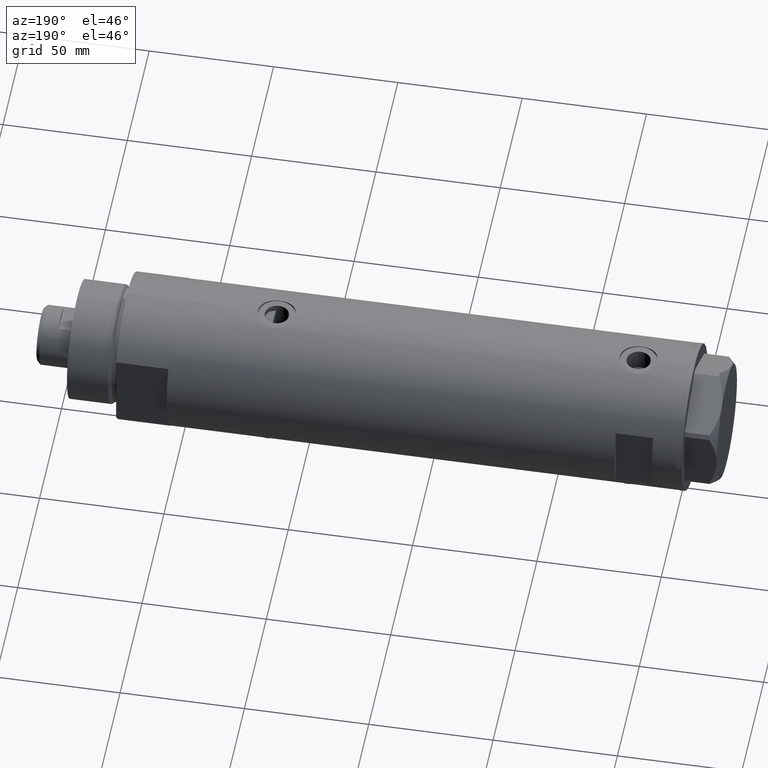
[diagram: clean part render]
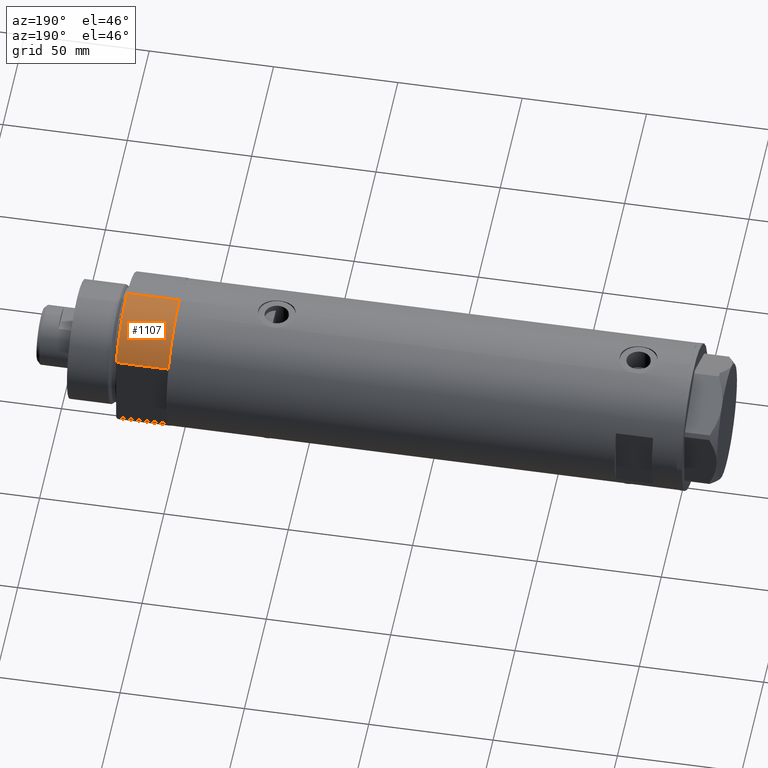
[diagram: same view with one face highlighted and labeled with its STEP entity id]
A machine part, auxiliary view. The second image highlights one B-rep face of the part: STEP entity #1107.
In plain terms, the highlighted cylindrical surface (partial cylindrical patch) has radius 29.5 mm, axis along (-1, -0, 0).
Its self-contained STEP definition (entity closure, byte-faithful):
#319 = CIRCLE ( 'NONE', #3950, 29.50000000000000355 ) ;
#484 = CARTESIAN_POINT ( 'NONE',  ( -15.66045976336583401, 25.00000000000000000, 0.000000000000000000 ) ) ;
#569 = ORIENTED_EDGE ( 'NONE', *, *, #4705, .T. ) ;
#577 = AXIS2_PLACEMENT_3D ( 'NONE', #2679, #3740, #3428 ) ;
#601 = CARTESIAN_POINT ( 'NONE',  ( 0.000000000000000000, 0.000000000000000000, 21.00000000000000000 ) ) ;
#618 = CIRCLE ( 'NONE', #1243, 29.50000000000000355 ) ;
#698 = EDGE_CURVE ( 'NONE', #1088, #1925, #1574, .T. ) ;
#761 = EDGE_CURVE ( 'NONE', #3029, #3619, #1622, .T. ) ;
#765 = CARTESIAN_POINT ( 'NONE',  ( -29.50000000000000355, 0.000000000000000000, 21.00000000000000000 ) ) ;
#847 = DIRECTION ( 'NONE',  ( 0.000000000000000000, 0.000000000000000000, 1.000000000000000000 ) ) ;
#1088 = VERTEX_POINT ( 'NONE', #765 ) ;
#1107 = ADVANCED_FACE ( 'NONE', ( #3765 ), #2315, .T. ) ;
#1243 = AXIS2_PLACEMENT_3D ( 'NONE', #601, #1990, #4279 ) ;
#1505 = VECTOR ( 'NONE', #3168, 1000.000000000000000 ) ;
#1574 = LINE ( 'NONE', #1961, #4126 ) ;
#1604 = CARTESIAN_POINT ( 'NONE',  ( 0.000000000000000000, 0.000000000000000000, 0.000000000000000000 ) ) ;
#1622 = LINE ( 'NONE', #3530, #1505 ) ;
#1663 = CARTESIAN_POINT ( 'NONE',  ( -29.50000000000000355, 0.000000000000000000, 0.000000000000000000 ) ) ;
#1925 = VERTEX_POINT ( 'NONE', #1663 ) ;
#1961 = CARTESIAN_POINT ( 'NONE',  ( -29.50000000000000355, 0.000000000000000000, 21.00000000000000000 ) ) ;
#1964 = CARTESIAN_POINT ( 'NONE',  ( -15.66045976336583045, 24.99999999999999645, 21.00000000000000355 ) ) ;
#1990 = DIRECTION ( 'NONE',  ( 0.000000000000000000, 0.000000000000000000, 1.000000000000000000 ) ) ;
#2315 = CYLINDRICAL_SURFACE ( 'NONE', #577, 29.50000000000000355 ) ;
#2679 = CARTESIAN_POINT ( 'NONE',  ( 0.000000000000000000, 0.000000000000000000, 21.00000000000000000 ) ) ;
#3029 = VERTEX_POINT ( 'NONE', #484 ) ;
#3076 = DIRECTION ( 'NONE',  ( -0.000000000000000000, -0.000000000000000000, -1.000000000000000000 ) ) ;
#3168 = DIRECTION ( 'NONE',  ( -0.000000000000000000, -0.000000000000000000, 1.000000000000000000 ) ) ;
#3396 = ORIENTED_EDGE ( 'NONE', *, *, #698, .F. ) ;
#3428 = DIRECTION ( 'NONE',  ( -1.000000000000000000, 0.000000000000000000, 0.000000000000000000 ) ) ;
#3530 = CARTESIAN_POINT ( 'NONE',  ( -15.66045976336583401, 25.00000000000000000, 0.000000000000000000 ) ) ;
#3619 = VERTEX_POINT ( 'NONE', #1964 ) ;
#3740 = DIRECTION ( 'NONE',  ( -0.000000000000000000, -0.000000000000000000, -1.000000000000000000 ) ) ;
#3765 = FACE_OUTER_BOUND ( 'NONE', #4657, .T. ) ;
#3773 = EDGE_CURVE ( 'NONE', #3619, #1088, #618, .T. ) ;
#3950 = AXIS2_PLACEMENT_3D ( 'NONE', #1604, #847, #4582 ) ;
#4099 = ORIENTED_EDGE ( 'NONE', *, *, #761, .F. ) ;
#4126 = VECTOR ( 'NONE', #3076, 1000.000000000000000 ) ;
#4279 = DIRECTION ( 'NONE',  ( 1.000000000000000000, 0.000000000000000000, 0.000000000000000000 ) ) ;
#4582 = DIRECTION ( 'NONE',  ( 1.000000000000000000, 0.000000000000000000, 0.000000000000000000 ) ) ;
#4657 = EDGE_LOOP ( 'NONE', ( #3396, #4780, #4099, #569 ) ) ;
#4705 = EDGE_CURVE ( 'NONE', #3029, #1925, #319, .T. ) ;
#4780 = ORIENTED_EDGE ( 'NONE', *, *, #3773, .F. ) ;